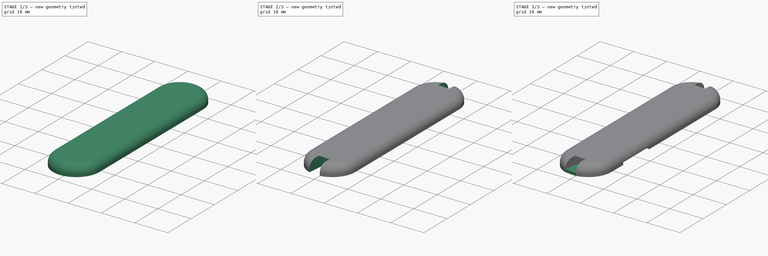
[diagram: build sequence overview — one tinted view per stage of 3, left to right]
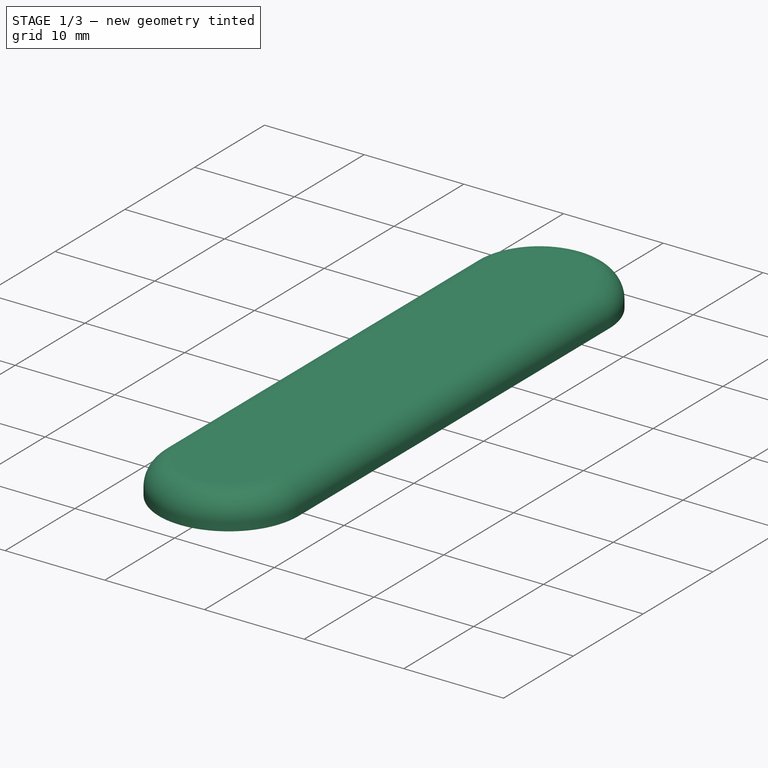
[diagram: stage 1 of 3 — iso view after this stage's code; geometry added in this stage tinted green]
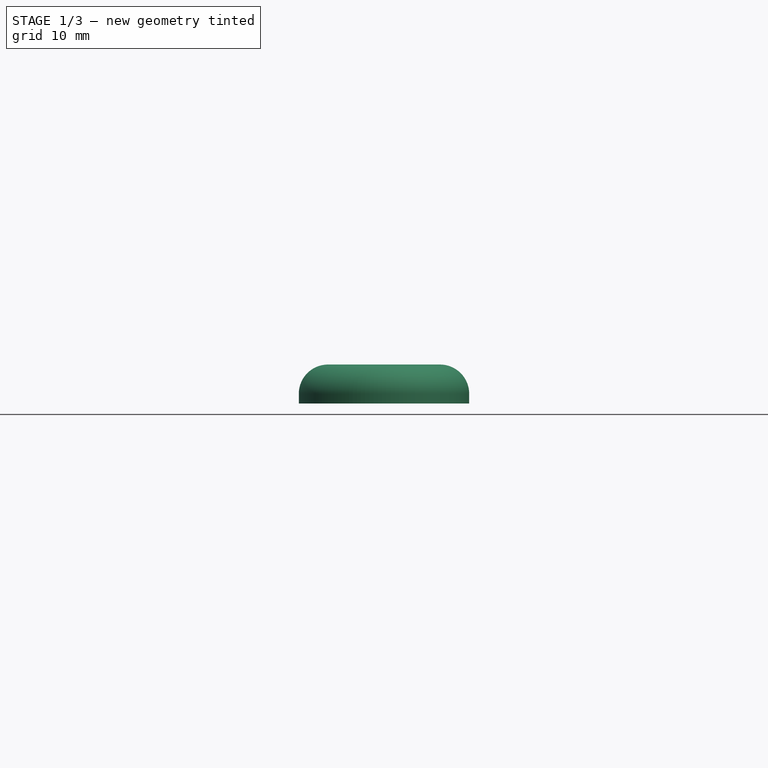
[diagram: stage 1 of 3 — front view after this stage's code; geometry added in this stage tinted green]
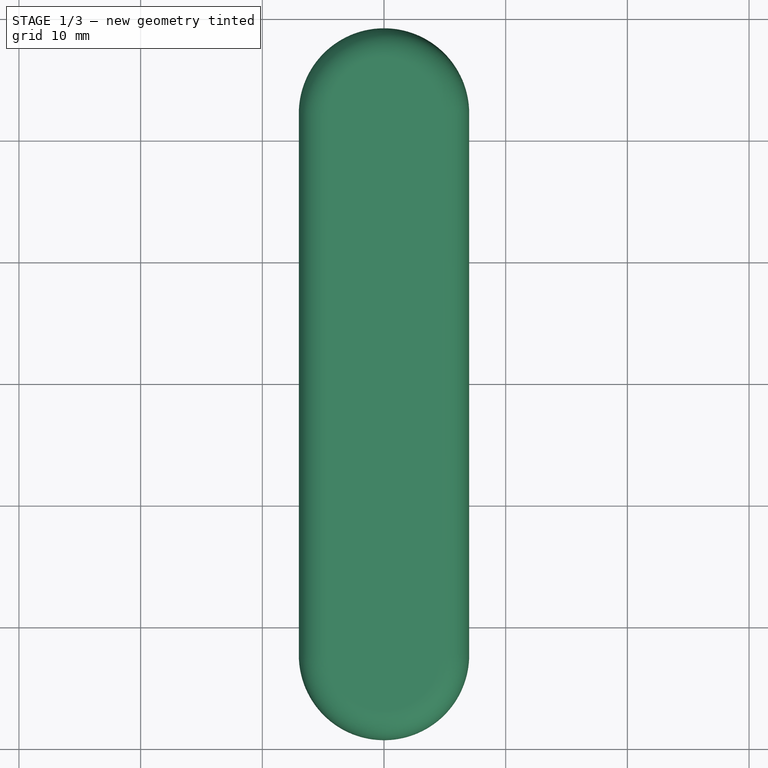
[diagram: stage 1 of 3 — top view after this stage's code; geometry added in this stage tinted green]
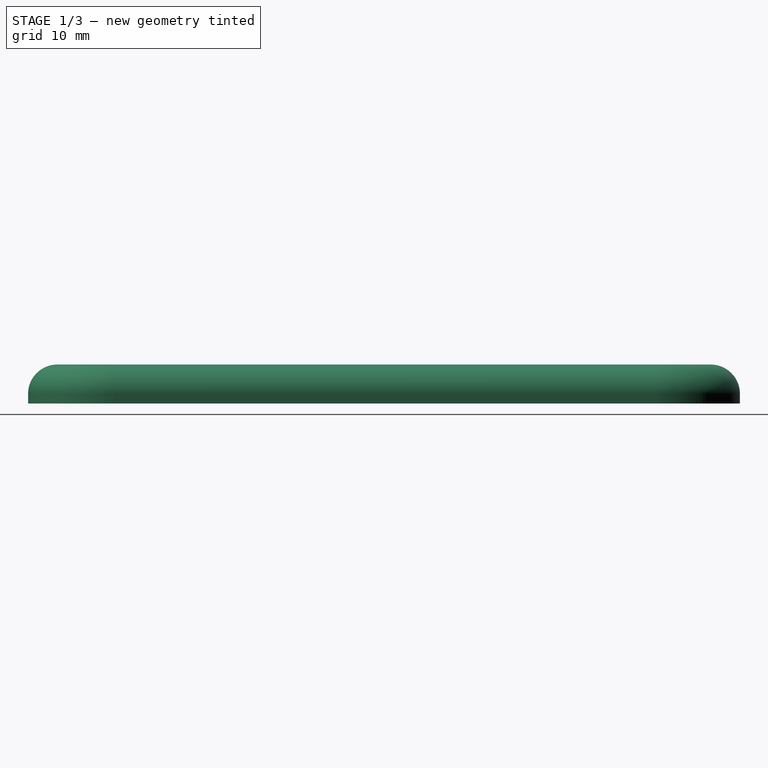
[diagram: stage 1 of 3 — right view after this stage's code; geometry added in this stage tinted green]
FCSTD DOCUMENT  (FreeCAD 0.18R16131 (Git))
Label: 58mm scale new
License: All rights reserved
LicenseURL: http://en.wikipedia.org/wiki/All_rights_reserved
objects: Sketcher::SketchObject×6, PartDesign::Pocket×4, PartDesign::Pad×2, PartDesign::Fillet×1, PartDesign::Body×1
note: 20 computed .brp shape members not serialized (recipe doc carries the construction recipe); baked Part::Feature solids carry a one-line shape summary decoded from their .brp

FEATURE [Sketcher::SketchObject] Sketch
  MapMode = 5
  Support = -> [XY_Plane]
  sketch-geometry (4):
    g0: ArcOfCircle CenterX=-4.49204e-11 CenterY=22.25 CenterZ=0 NormalX=0 NormalY=0 NormalZ=1 AngleXU=0 Radius=7 StartAngle=8.39611e-11 EndAngle=3.14159
    g1: ArcOfCircle CenterX=-4.49206e-11 CenterY=-22.25 CenterZ=0 NormalX=0 NormalY=0 NormalZ=1 AngleXU=0 Radius=7 StartAngle=3.14159 EndAngle=6.28319
    g2: LineSegment StartX=-7 StartY=22.25 StartZ=0 EndX=-7 EndY=-22.25 EndZ=0
    g3: LineSegment StartX=7 StartY=22.25 StartZ=0 EndX=7 EndY=-22.25 EndZ=0
  constraints (9):
    c: Tangent(g0,g3) = 1.5708
    c: Tangent(g0,g2) = -1.5708
    c: Tangent(g2,g1) = -1.5708
    c: Tangent(g3,g1) = 1.5708
    c: Equal(g0,g1)
    c: Diameter(g0) = 14
    c: DistanceX(g0) = 7
    c: DistanceY(g0) = 22.25
    c: Symmetric(g0,g1,g-1)
FEATURE [PartDesign::Pad] Pad
  Length = 3.2
  Length2 = 100
  Profile = -> Sketch
  Type = 0
FEATURE [PartDesign::Fillet] Fillet
  Base = -> Pad [Edge10,Edge7,Edge12,Edge4]
  BaseFeature = -> Pad
  Radius = 2.4
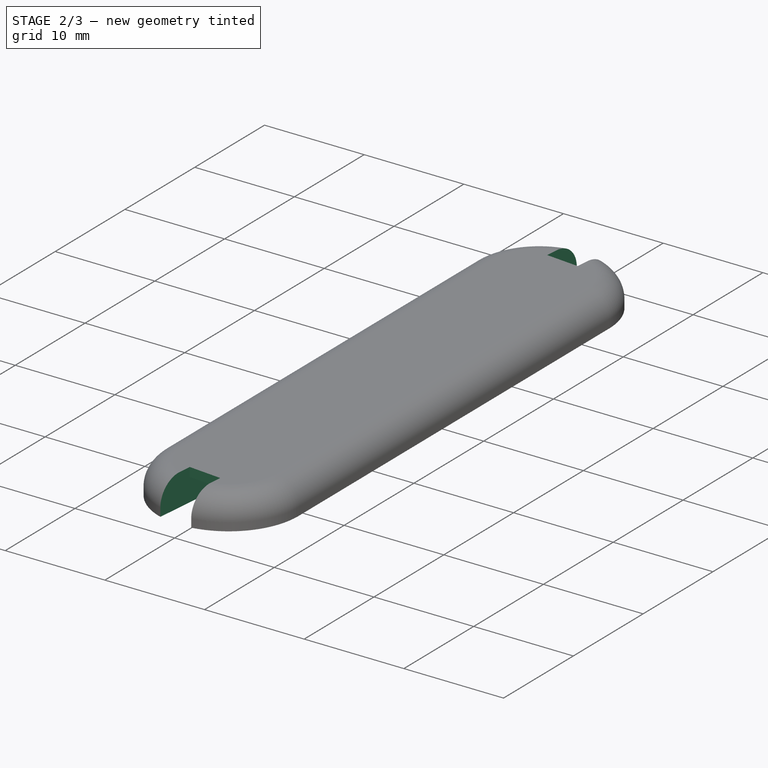
[diagram: stage 2 of 3 — iso view after this stage's code; geometry added in this stage tinted green]
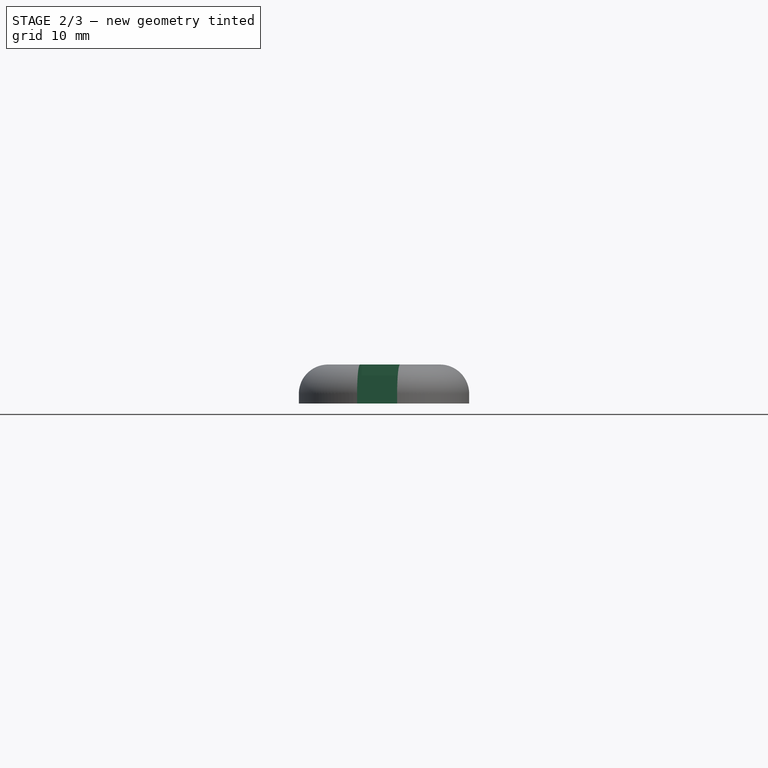
[diagram: stage 2 of 3 — front view after this stage's code; geometry added in this stage tinted green]
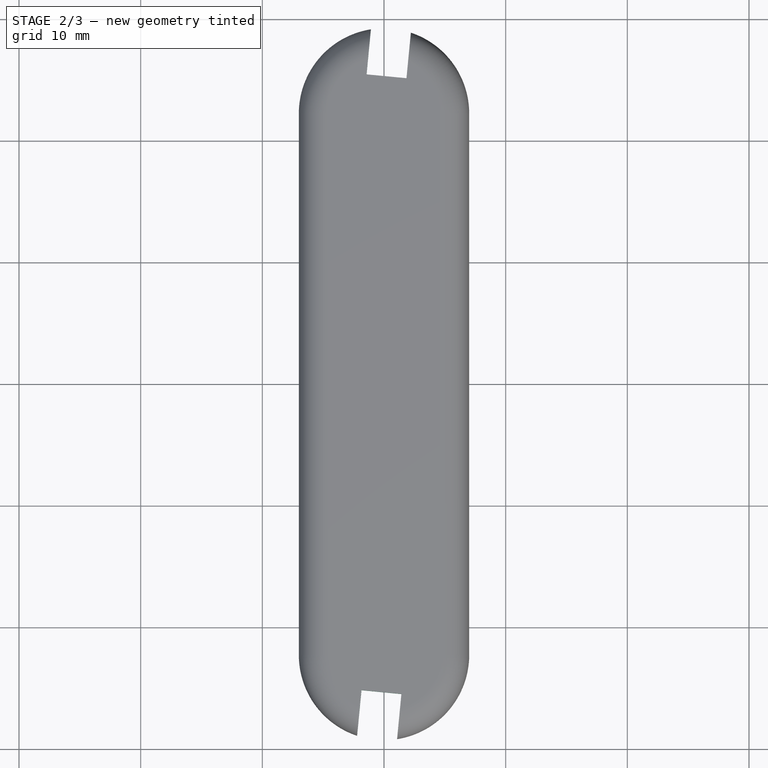
[diagram: stage 2 of 3 — top view after this stage's code; geometry added in this stage tinted green]
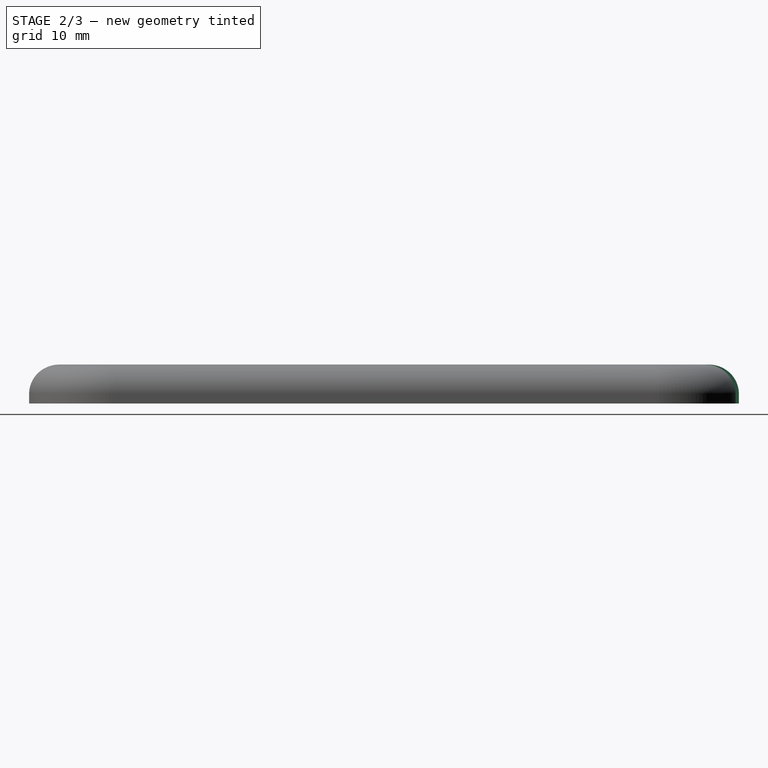
[diagram: stage 2 of 3 — right view after this stage's code; geometry added in this stage tinted green]
FEATURE [Sketcher::SketchObject] Sketch001
  MapMode = 5
  Placement = pos=(0,0,0) rot=(1,0,0;3.14159rad)
  Support = -> [Fillet]
  sketch-geometry (4):
    g0: Circle CenterX=-3.5 CenterY=23.15 CenterZ=0 NormalX=0 NormalY=0 NormalZ=1 AngleXU=0 Radius=1.6
    g1: Circle CenterX=3.5 CenterY=23.15 CenterZ=0 NormalX=0 NormalY=0 NormalZ=1 AngleXU=0 Radius=1.6
    g2: Circle CenterX=3.5 CenterY=-23.15 CenterZ=0 NormalX=0 NormalY=0 NormalZ=1 AngleXU=0 Radius=1.6
    g3: Circle CenterX=-3.5 CenterY=-23.15 CenterZ=0 NormalX=0 NormalY=0 NormalZ=1 AngleXU=0 Radius=1.6
  constraints (9):
    c: Diameter(g0) = 3.2
    c: Symmetric(g0,g1,g-2)
    c: Diameter(g1) = 3.2
    c: Symmetric(g0,g3,g-1)
    c: Symmetric(g1,g2,g-1)
    c: Diameter(g3) = 3.2
    c: Diameter(g2) = 3.2
    c: DistanceX(g0,g1) = 7
    c: DistanceY(g3,g0) = 46.3
FEATURE [PartDesign::Pocket] Pocket
  BaseFeature = -> Fillet
  Length = 1.6
  Length2 = 100
  Profile = -> Sketch001
  Type = 0
FEATURE [Sketcher::SketchObject] Sketch002
  ExternalGeometry = -> [Pocket]
  MapMode = 5
  Placement = pos=(0,0,0) rot=(1,0,0;3.14159rad)
  Support = -> [Pocket]
  sketch-geometry (15):
    g0: LineSegment StartX=-5.85324 StartY=20.3851 StartZ=0 EndX=-1.05683 EndY=-29.3843 EndZ=0
    g1: LineSegment StartX=-2.56846 StartY=20.7017 StartZ=0 EndX=2.22795 EndY=-29.0677 EndZ=0
    g2: LineSegment StartX=-5.85324 StartY=20.3851 StartZ=0 EndX=-2.56846 EndY=20.7017 EndZ=0
    g3: LineSegment StartX=-1.05683 StartY=-29.3843 StartZ=0 EndX=2.22795 EndY=-29.0677 EndZ=0
    g4: LineSegment StartX=1.05683 StartY=29.3843 StartZ=0 EndX=5.85324 EndY=-20.3851 EndZ=0
    g5: LineSegment StartX=5.85324 StartY=-20.3851 StartZ=0 EndX=2.56846 EndY=-20.7017 EndZ=0
    g6: LineSegment StartX=2.56846 StartY=-20.7017 StartZ=0 EndX=-2.22795 EndY=29.0677 EndZ=0
    g7: LineSegment StartX=-2.22795 StartY=29.0677 StartZ=0 EndX=1.05683 EndY=29.3843 EndZ=0
    g8: LineSegment [constr] StartX=-1.65764 StartY=23.15 StartZ=0 EndX=-1.9 EndY=23.15 EndZ=0
    g9: LineSegment [constr] StartX=1.9 StartY=23.15 StartZ=0 EndX=1.65764 EndY=23.15 EndZ=0
    g10: LineSegment [constr] StartX=-5.85324 StartY=20.3851 StartZ=0 EndX=-7 EndY=20.3851 EndZ=0
    g11: LineSegment [constr] StartX=7 StartY=-20.3851 StartZ=0 EndX=5.85324 EndY=-20.3851 EndZ=0
    g12: LineSegment [constr] StartX=0.209257 StartY=3.77829 StartZ=0 EndX=-0.937505 EndY=3.77829 EndZ=0
    g13: LineSegment [constr] StartX=-5.1 StartY=-23.15 StartZ=0 EndX=-1.65764 EndY=-23.15 EndZ=0
    g14: LineSegment [constr] StartX=1.6282 StartY=-22.8444 StartZ=0 EndX=5.07055 EndY=-22.8444 EndZ=0
  constraints (49):
    c: Parallel(g0,g1)
    c: Coincident(g0,g2)
    c: Coincident(g2,g1)
    c: Perpendicular(g0,g2)
    c: Distance(g2) = 3.3
    c: Distance(g0) = 50
    c: Coincident(g3,g0)
    c: Coincident(g3,g1)
    c: Parallel(g4,g6)
    c: Perpendicular(g4,g7)
    c: Perpendicular(g5,g4)
    c: Coincident(g4,g7)
    c: Coincident(g5,g6)
    c: Coincident(g4,g5)
    c: Coincident(g7,g6)
    c: Distance(g7) = 3.3
    c: Parallel(g6,g0)
    c: Horizontal(g8)
    c: PointOnObject(g8,g-3)
    c: PointOnObject(g8,g6)
    c: PointOnObject(g9,g-4)
    c: Horizontal(g9)
    c: PointOnObject(g9,g4)
    c: Equal(g9,g8)
    c: DistanceY(g9,g8) = 0
    c: DistanceY(g9,g-4) = 0
    c: Horizontal(g10)
    c: PointOnObject(g10,g-5)
    c: Coincident(g10,g0)
    c: Horizontal(g11)
    c: PointOnObject(g11,g-6)
    c: Coincident(g11,g4)
    c: Equal(g10,g11)
    c: Tangent(g-7,g3)
    c: Tangent(g-8,g7)
    c: Horizontal(g12)
    c: PointOnObject(g12,g1)
    c: PointOnObject(g12,g6)
    c: Equal(g11,g12)
    c: Horizontal(g13)
    c: PointOnObject(g13,g0)
    c: PointOnObject(g13,g-9)
    c: DistanceY(g13,g-9) = 0
    c: Horizontal(g14)
    c: PointOnObject(g14,g1)
    c: PointOnObject(g14,g-10)
    c: Equal(g14,g13)
    c: Equal(g0,g6)
    c: Equal(g6,g1)
FEATURE [PartDesign::Pocket] Pocket001
  BaseFeature = -> Pocket
  Length = 2.3
  Length2 = 100
  Profile = -> Sketch002
  Type = 0
FEATURE [Sketcher::SketchObject] Sketch003
  ExternalGeometry = -> [Pocket001]
  MapMode = 5
  Placement = pos=(0,0,0) rot=(1,0,0;3.14159rad)
  Support = -> [Pocket001]
  sketch-geometry (8):
    g0: LineSegment StartX=-2.23774 StartY=29.1693 StartZ=0 EndX=1.04704 EndY=29.4859 EndZ=0
    g1: LineSegment StartX=1.04704 StartY=29.4859 StartZ=0 EndX=1.43075 EndY=25.5044 EndZ=0
    g2: LineSegment StartX=1.43075 StartY=25.5044 StartZ=0 EndX=-1.85403 EndY=25.1878 EndZ=0
    g3: LineSegment StartX=-1.85403 StartY=25.1878 StartZ=0 EndX=-2.23774 EndY=29.1693 EndZ=0
    g4: LineSegment StartX=-1.4382 StartY=-25.4271 StartZ=0 EndX=1.84658 EndY=-25.1105 EndZ=0
    g5: LineSegment StartX=1.84658 StartY=-25.1105 StartZ=0 EndX=2.2303 EndY=-29.0921 EndZ=0
    g6: LineSegment StartX=2.2303 StartY=-29.0921 StartZ=0 EndX=-1.05448 EndY=-29.4086 EndZ=0
    g7: LineSegment StartX=-1.05448 StartY=-29.4086 StartZ=0 EndX=-1.4382 EndY=-25.4271 EndZ=0
  constraints (20):
    c: Coincident(g0,g1)
    c: Coincident(g1,g2)
    c: Coincident(g2,g3)
    c: Coincident(g3,g0)
    c: Parallel(g0,g2)
    c: Parallel(g3,g1)
    c: Perpendicular(g0,g3)
    c: Tangent(g-3,g3)
    c: Distance(g0) = 3.3
    c: Distance(g1) = 4
    c: Coincident(g4,g5)
    c: Coincident(g5,g6)
    c: Coincident(g6,g7)
    c: Coincident(g7,g4)
    c: Parallel(g4,g6)
    c: Parallel(g7,g5)
    c: Perpendicular(g7,g4)
    c: Tangent(g-5,g7)
    c: Distance(g4) = 3.3
    c: Distance(g5) = 4
FEATURE [PartDesign::Pocket] Pocket002
  BaseFeature = -> Pocket001
  Length = 5
  Length2 = 100
  Profile = -> Sketch003
  Type = 0
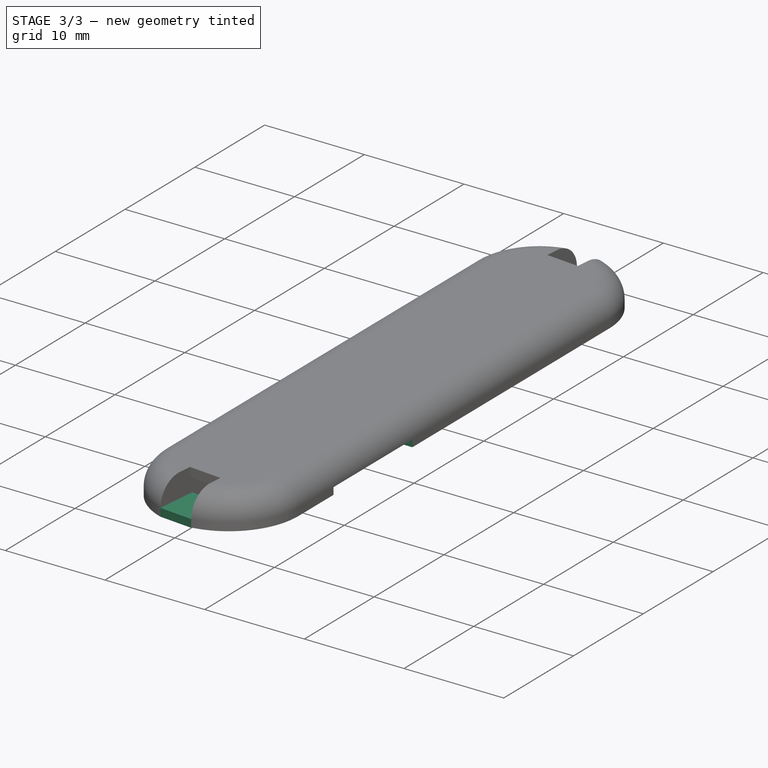
[diagram: stage 3 of 3 — iso view after this stage's code; geometry added in this stage tinted green]
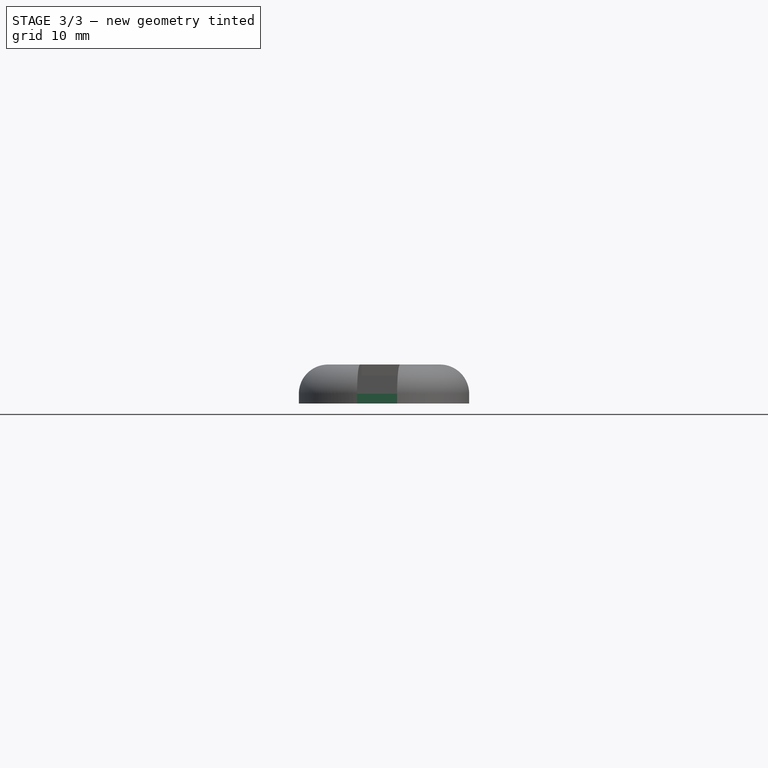
[diagram: stage 3 of 3 — front view after this stage's code; geometry added in this stage tinted green]
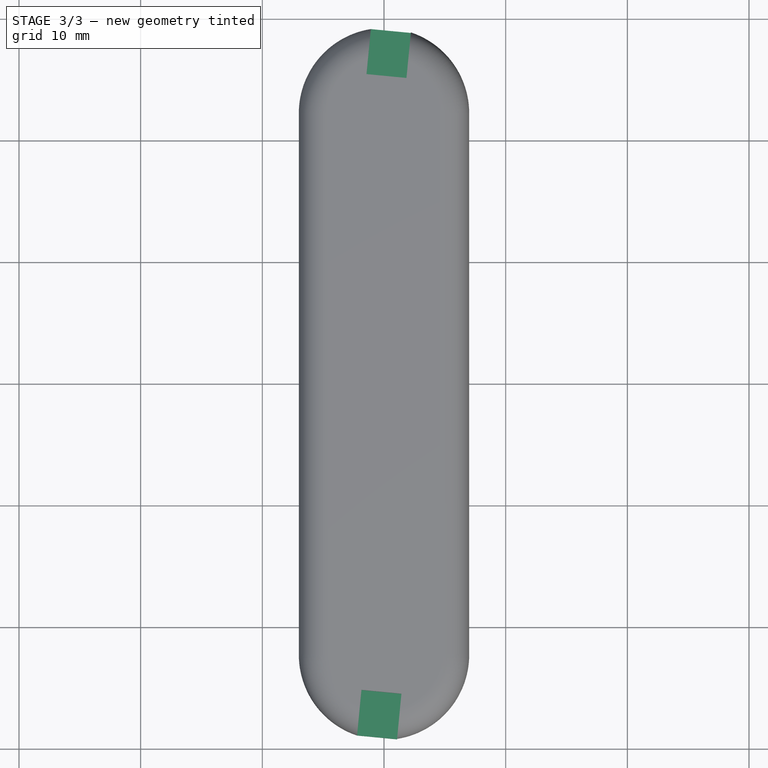
[diagram: stage 3 of 3 — top view after this stage's code; geometry added in this stage tinted green]
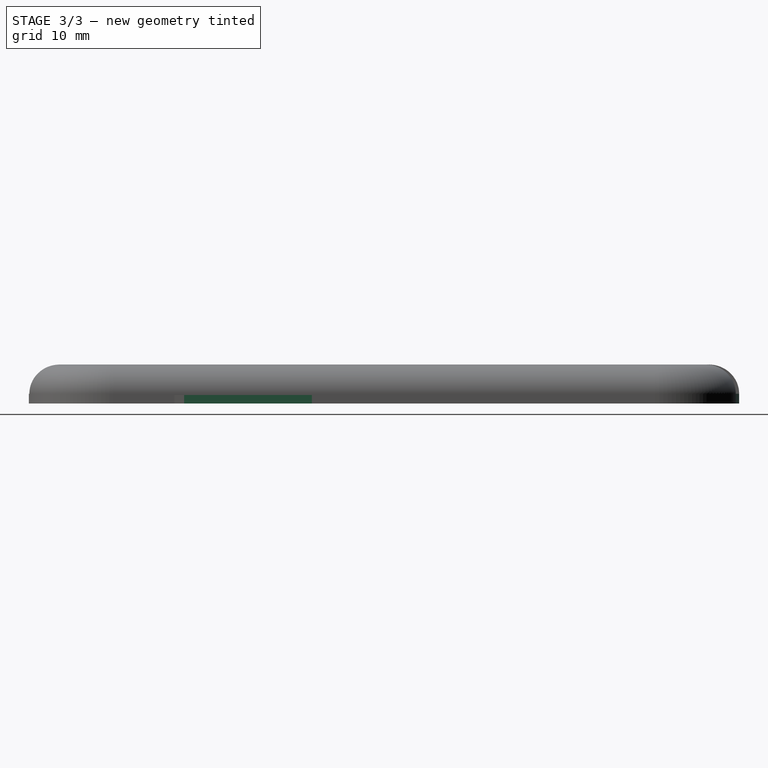
[diagram: stage 3 of 3 — right view after this stage's code; geometry added in this stage tinted green]
FEATURE [Sketcher::SketchObject] Sketch004
  ExternalGeometry = -> [Pocket002]
  MapMode = 5
  Placement = pos=(0,0,0) rot=(1,0,0;3.14159rad)
  Support = -> [Pocket002]
  sketch-geometry (6):
    g0: LineSegment StartX=-6.5 StartY=16.45 StartZ=0 EndX=-3 EndY=16.45 EndZ=0
    g1: LineSegment StartX=7 StartY=17.25 StartZ=0 EndX=7 EndY=5.95 EndZ=0
    g2: LineSegment StartX=7 StartY=5.95 StartZ=0 EndX=-6.5 EndY=5.95 EndZ=0
    g3: LineSegment StartX=-6.5 StartY=5.95 StartZ=0 EndX=-6.5 EndY=16.45 EndZ=0
    g4: LineSegment StartX=-3 StartY=16.45 StartZ=0 EndX=-3 EndY=17.25 EndZ=0
    g5: LineSegment StartX=-3 StartY=17.25 StartZ=0 EndX=7 EndY=17.25 EndZ=0
  constraints (17):
    c: Coincident(g1,g2)
    c: Coincident(g2,g3)
    c: Coincident(g3,g0)
    c: Horizontal(g0)
    c: Horizontal(g2)
    c: Coincident(g5,g1)
    c: Coincident(g5,g4)
    c: Coincident(g4,g0)
    c: Vertical(g4)
    c: Tangent(g-3,g1)
    c: DistanceX(g0,g0) = 3.5
    c: DistanceY(g3,g3) = 10.5
    c: Horizontal(g5)
    c: DistanceY(g1,g1) = 11.3
    c: DistanceY(g1,g-3) = 5
    c: DistanceX(g2,g2) = 13.5
    c: Vertical(g3)
FEATURE [PartDesign::Pocket] Pocket003
  BaseFeature = -> Pocket002
  Length = 0.7
  Length2 = 100
  Profile = -> Sketch004
  Type = 0
FEATURE [Sketcher::SketchObject] Sketch006
  ExternalGeometry = -> [Pocket001]
  MapMode = 5
  Placement = pos=(0,0,0) rot=(1,0,0;3.14159rad)
  Support = -> [Pocket001]
  sketch-geometry (8):
    g0: LineSegment StartX=-2.21098 StartY=28.8917 StartZ=0 EndX=-1.82727 EndY=24.9101 EndZ=0
    g1: LineSegment StartX=-1.82727 StartY=24.9101 StartZ=0 EndX=1.45751 EndY=25.2267 EndZ=0
    g2: LineSegment StartX=1.45751 StartY=25.2267 StartZ=0 EndX=1.0738 EndY=29.2082 EndZ=0
    g3: LineSegment StartX=1.0738 StartY=29.2082 StartZ=0 EndX=-2.21098 EndY=28.8917 EndZ=0
    g4: LineSegment StartX=-1.46153 StartY=-25.185 StartZ=0 EndX=1.82325 EndY=-24.8684 EndZ=0
    g5: LineSegment StartX=1.82325 StartY=-24.8684 StartZ=0 EndX=2.20696 EndY=-28.85 EndZ=0
    g6: LineSegment StartX=2.20696 StartY=-28.85 StartZ=0 EndX=-1.07782 EndY=-29.1665 EndZ=0
    g7: LineSegment StartX=-1.07782 StartY=-29.1665 StartZ=0 EndX=-1.46153 EndY=-25.185 EndZ=0
  constraints (20):
    c: Coincident(g0,g3)
    c: Coincident(g0,g1)
    c: Distance(g0) = 4
    c: Perpendicular(g3,g0)
    c: Parallel(g0,g-3)
    c: Coincident(g0,g-3)
    c: Coincident(g2,g3)
    c: Coincident(g2,g1)
    c: Parallel(g1,g3)
    c: Coincident(g4,g5)
    c: Coincident(g5,g6)
    c: Coincident(g6,g7)
    c: Coincident(g7,g4)
    c: Distance(g7) = 4
    c: Perpendicular(g7,g6)
    c: Coincident(g6,g-5)
    c: Tangent(g5,g-6)
    c: Perpendicular(g6,g5)
    c: Parallel(g4,g6)
    c: Tangent(g2,g-4)
FEATURE [PartDesign::Pad] Pad002
  BaseFeature = -> Pocket003
  Length = 0.8
  Length2 = 100
  Profile = -> Sketch006
  Reversed = true
  Type = 0
FEATURE [PartDesign::Body] Body
  Group = -> [Sketch,Pad,Fillet,Sketch001,Pocket,Sketch002,Pocket001,Sketch003,Pocket002,Sketch004,Pocket003,Sketch006,Pad002]
  Origin = -> Origin
  Tip = -> Pad002
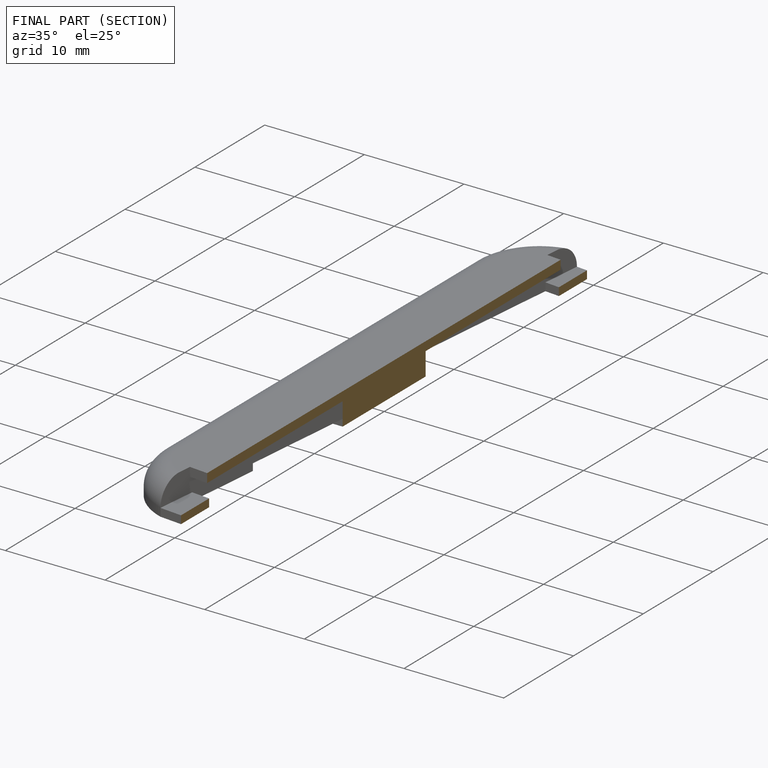
[diagram: finished part — half-section view (interior)]
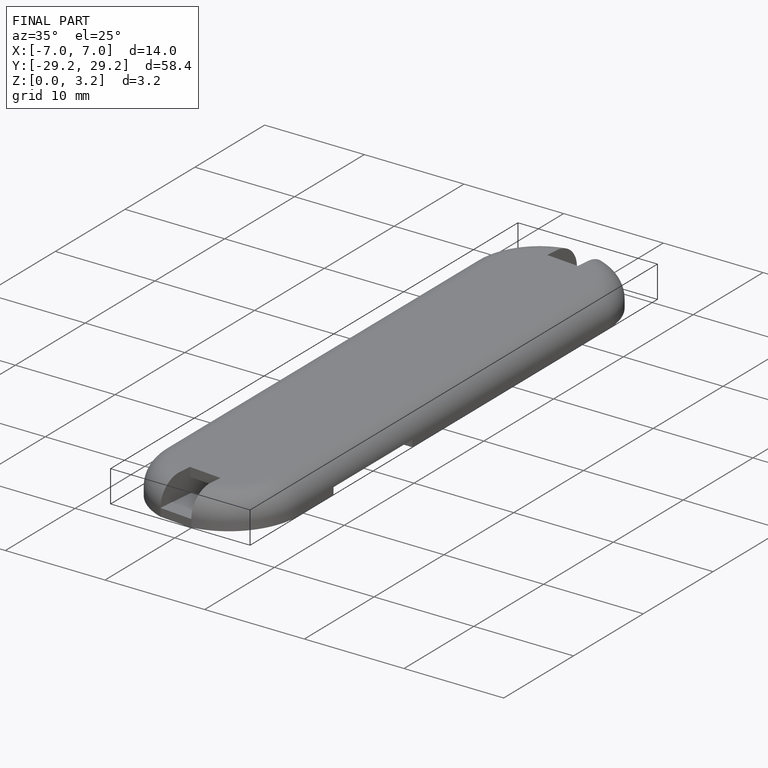
[diagram: finished part — iso view with bounding-box wireframe]
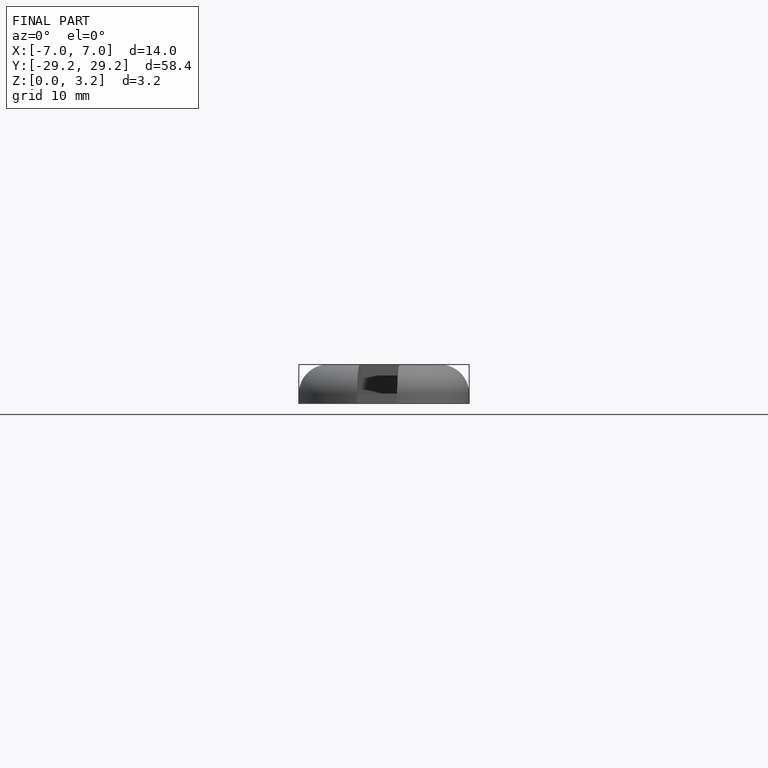
[diagram: finished part — front view with bounding-box wireframe]
